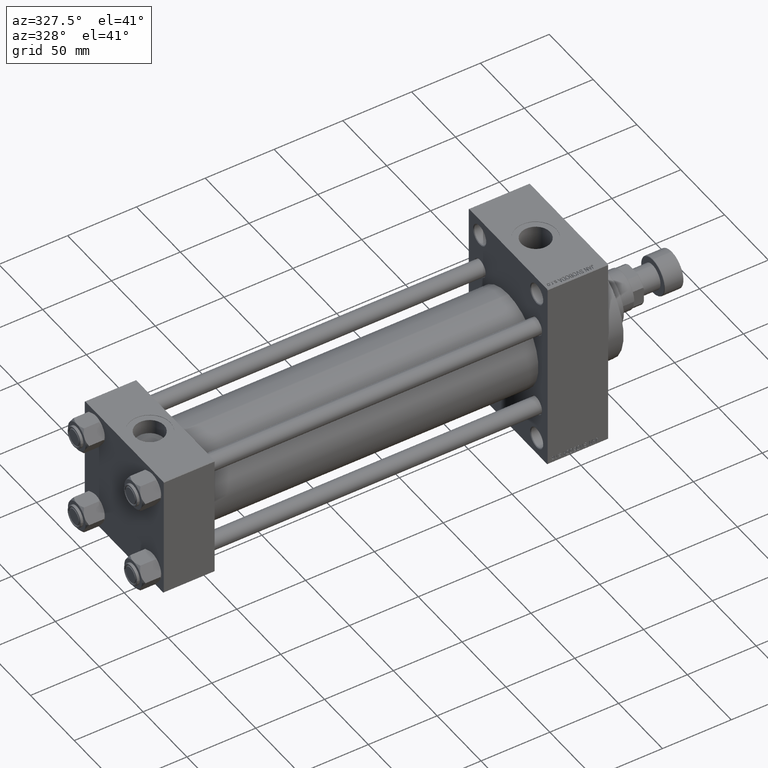
[diagram: clean part render]
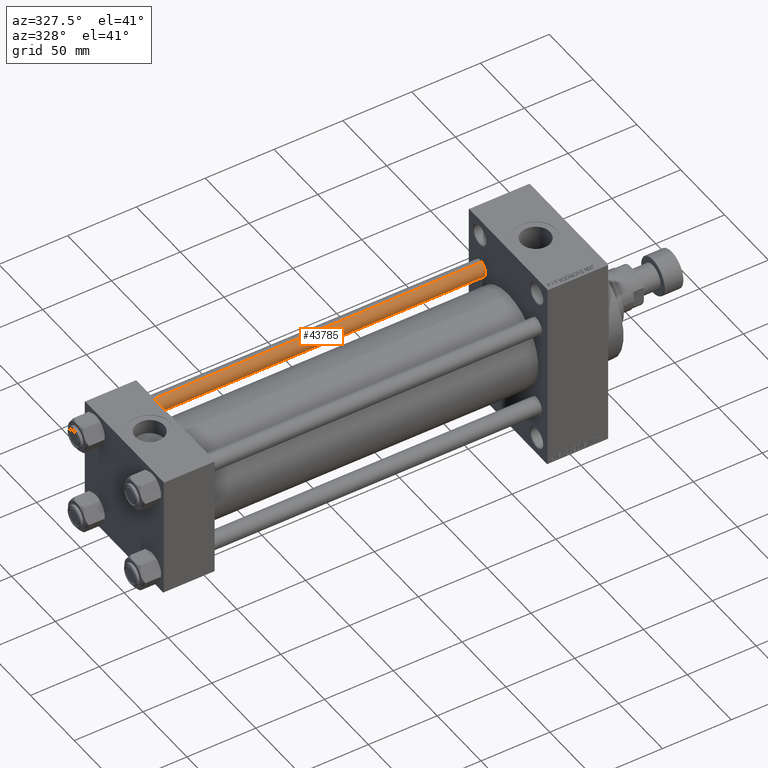
[diagram: same view with one face highlighted and labeled with its STEP entity id]
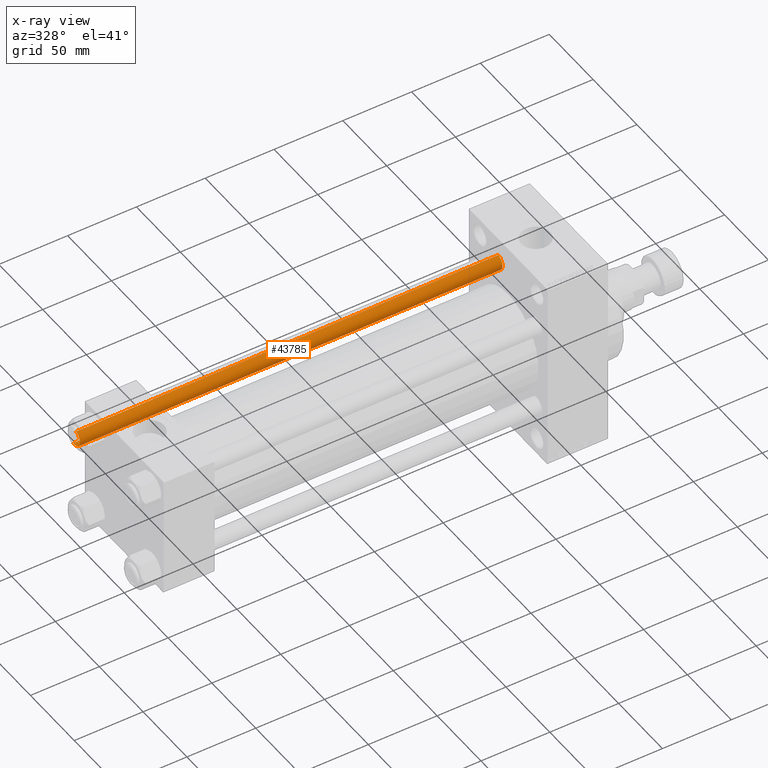
[diagram: x-ray of the same camera — body ghosted, the highlighted face saturated]
A machine part, auxiliary view. The second image highlights one B-rep face of the part: STEP entity #43785.
The next image is the same camera in x-ray: the body ghosted, the highlighted face saturated — about 0% of this face is hidden behind the body in this view.
In plain terms, the highlighted cylindrical surface (edge-blend (fillet) strip) has radius 6 mm, axis along (-1, -0, 0).
Its self-contained STEP definition (entity closure, byte-faithful):
#377 = LINE ( 'NONE', #34076, #35626 ) ;
#1603 = EDGE_LOOP ( 'NONE', ( #3028, #8132, #7290, #43201 ) ) ;
#2766 = VERTEX_POINT ( 'NONE', #14169 ) ;
#3028 = ORIENTED_EDGE ( 'NONE', *, *, #20162, .F. ) ;
#4972 = DIRECTION ( 'NONE',  ( 1.000000000000000000, 0.000000000000000000, 0.000000000000000000 ) ) ;
#6754 = LINE ( 'NONE', #33672, #44657 ) ;
#7290 = ORIENTED_EDGE ( 'NONE', *, *, #34571, .T. ) ;
#7907 = AXIS2_PLACEMENT_3D ( 'NONE', #47002, #43221, #4972 ) ;
#8053 = DIRECTION ( 'NONE',  ( -0.000000000000000000, -0.000000000000000000, -1.000000000000000000 ) ) ;
#8132 = ORIENTED_EDGE ( 'NONE', *, *, #22333, .T. ) ;
#10432 = CARTESIAN_POINT ( 'NONE',  ( 6.000000000000000888, 7.347880794884120722E-16, 0.5000000000000559552 ) ) ;
#12513 = VERTEX_POINT ( 'NONE', #30444 ) ;
#13930 = VERTEX_POINT ( 'NONE', #24089 ) ;
#14169 = CARTESIAN_POINT ( 'NONE',  ( 6.000000000000000888, 7.347880794884120722E-16, 307.4999999999999432 ) ) ;
#19136 = CARTESIAN_POINT ( 'NONE',  ( 0.000000000000000000, 0.000000000000000000, 308.0000000000000000 ) ) ;
#20162 = EDGE_CURVE ( 'NONE', #2766, #22063, #6754, .T. ) ;
#22063 = VERTEX_POINT ( 'NONE', #10432 ) ;
#22333 = EDGE_CURVE ( 'NONE', #2766, #13930, #24668, .T. ) ;
#23525 = DIRECTION ( 'NONE',  ( -0.000000000000000000, -0.000000000000000000, -1.000000000000000000 ) ) ;
#24089 = CARTESIAN_POINT ( 'NONE',  ( -6.000000000000000888, 0.000000000000000000, 307.4999999999999432 ) ) ;
#24668 = CIRCLE ( 'NONE', #31855, 6.000000000000000888 ) ;
#25483 = DIRECTION ( 'NONE',  ( 1.000000000000000000, 0.000000000000000000, 0.000000000000000000 ) ) ;
#25966 = EDGE_CURVE ( 'NONE', #12513, #22063, #40062, .T. ) ;
#25972 = CARTESIAN_POINT ( 'NONE',  ( 0.000000000000000000, 0.000000000000000000, 307.4999999999999432 ) ) ;
#26438 = FACE_OUTER_BOUND ( 'NONE', #1603, .T. ) ;
#29410 = DIRECTION ( 'NONE',  ( -0.000000000000000000, -0.000000000000000000, -1.000000000000000000 ) ) ;
#30444 = CARTESIAN_POINT ( 'NONE',  ( -6.000000000000000888, 0.000000000000000000, 0.5000000000000559552 ) ) ;
#30454 = CYLINDRICAL_SURFACE ( 'NONE', #43075, 6.000000000000000888 ) ;
#31855 = AXIS2_PLACEMENT_3D ( 'NONE', #25972, #33513, #25483 ) ;
#33513 = DIRECTION ( 'NONE',  ( 0.000000000000000000, 0.000000000000000000, -1.000000000000000000 ) ) ;
#33672 = CARTESIAN_POINT ( 'NONE',  ( 6.000000000000000888, 7.347880794884120722E-16, 308.0000000000000000 ) ) ;
#34076 = CARTESIAN_POINT ( 'NONE',  ( -6.000000000000000888, 0.000000000000000000, 308.0000000000000000 ) ) ;
#34218 = DIRECTION ( 'NONE',  ( -1.000000000000000000, 0.000000000000000000, 0.000000000000000000 ) ) ;
#34571 = EDGE_CURVE ( 'NONE', #13930, #12513, #377, .T. ) ;
#35626 = VECTOR ( 'NONE', #23525, 1000.000000000000000 ) ;
#40062 = CIRCLE ( 'NONE', #7907, 6.000000000000000888 ) ;
#43075 = AXIS2_PLACEMENT_3D ( 'NONE', #19136, #8053, #34218 ) ;
#43201 = ORIENTED_EDGE ( 'NONE', *, *, #25966, .T. ) ;
#43221 = DIRECTION ( 'NONE',  ( -0.000000000000000000, -0.000000000000000000, 1.000000000000000000 ) ) ;
#43785 = ADVANCED_FACE ( 'NONE', ( #26438 ), #30454, .T. ) ;
#44657 = VECTOR ( 'NONE', #29410, 1000.000000000000000 ) ;
#47002 = CARTESIAN_POINT ( 'NONE',  ( 0.000000000000000000, 0.000000000000000000, 0.5000000000000559552 ) ) ;